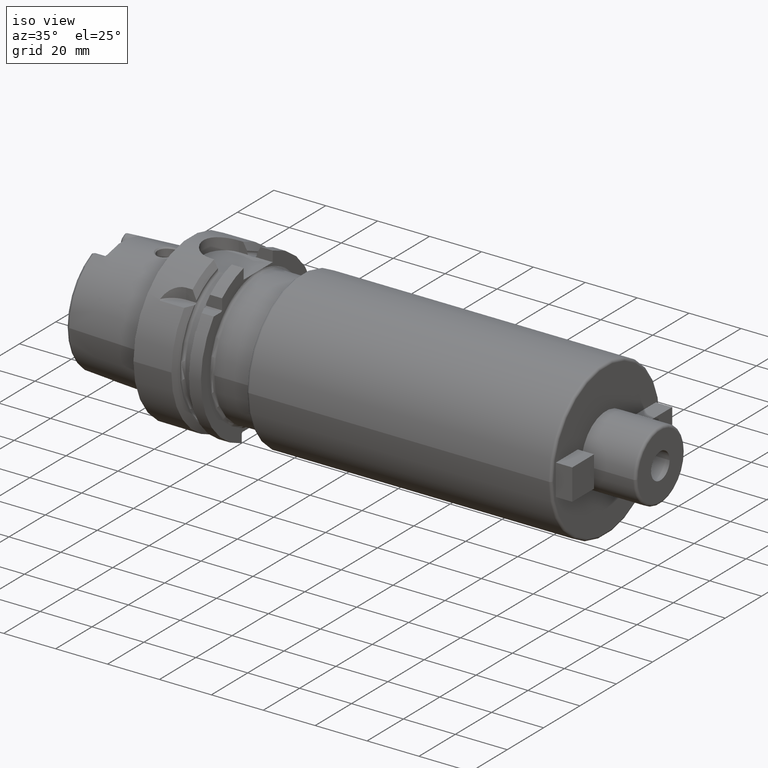
[diagram: clean part render]
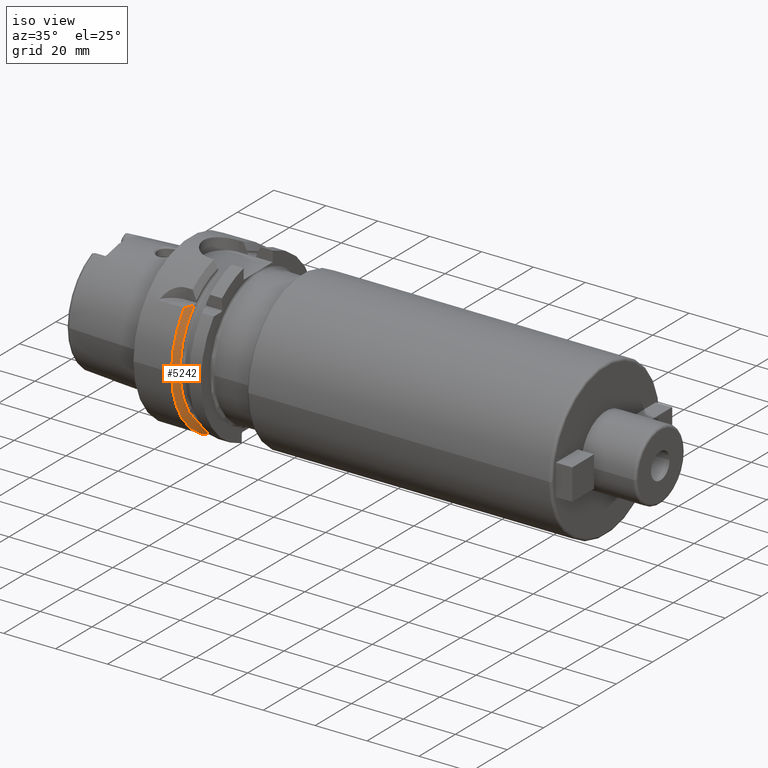
[diagram: same view with one face highlighted and labeled with its STEP entity id]
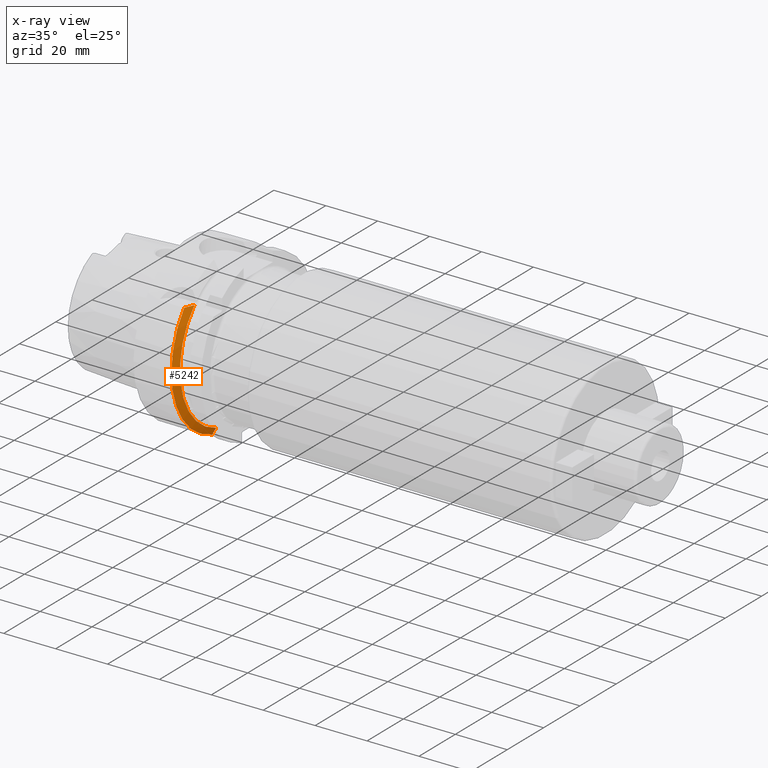
[diagram: x-ray of the same camera — body ghosted, the highlighted face saturated]
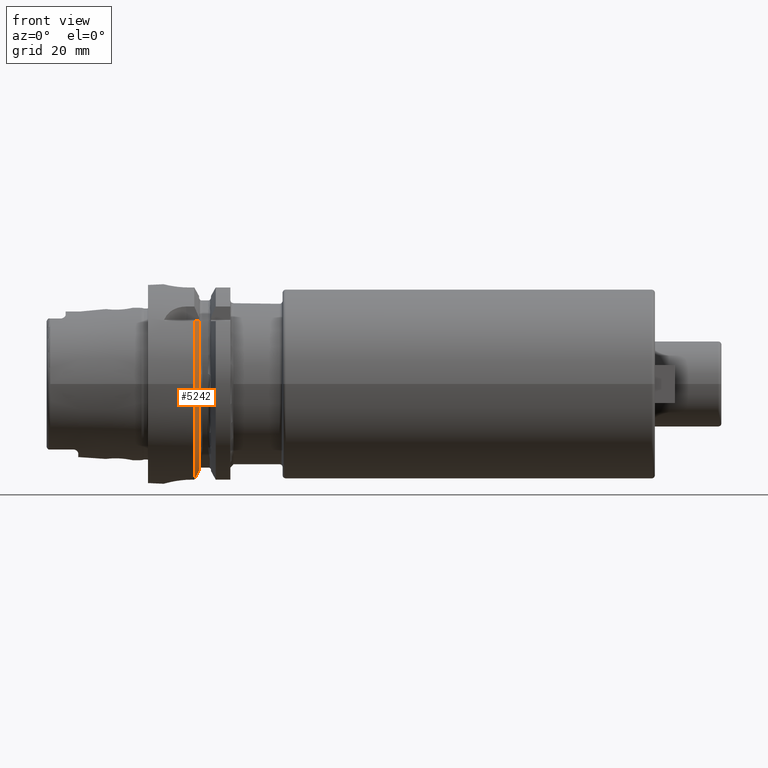
[diagram: same view with one face highlighted and labeled with its STEP entity id]
A machine part, iso view. The second image highlights one B-rep face of the part: STEP entity #5242.
The next image is the same camera in x-ray: the body ghosted, the highlighted face saturated — about 0% of this face is hidden behind the body in this view.
A second angle (front view) of the same face is appended — the face is thin or edge-on in the first view.
In plain terms, the highlighted conical surface has half-angle 60 deg.
Its self-contained STEP definition (entity closure, byte-faithful):
#1106=CARTESIAN_POINT('',(1.462250092524E1,0.E0,0.E0));
#1107=DIRECTION('',(1.E0,0.E0,0.E0));
#1108=DIRECTION('',(0.E0,-7.764663384879E-1,6.301587301587E-1));
#1109=AXIS2_PLACEMENT_3D('',#1106,#1107,#1108);
#1608=CARTESIAN_POINT('',(1.6125E1,-2.100115501712E1,1.985E1));
#1609=CARTESIAN_POINT('',(1.597384221917E1,-2.136140971936E1,1.985E1));
#1610=CARTESIAN_POINT('',(1.566115300621E1,-2.209786160622E1,1.985E1));
#1611=CARTESIAN_POINT('',(1.516255881786E1,-2.324577082409E1,1.985E1));
#1612=CARTESIAN_POINT('',(1.480632619355E1,-2.404863363206E1,1.985E1));
#1613=CARTESIAN_POINT('',(1.462250092524E1,-2.445868966237E1,1.985E1));
#1615=CARTESIAN_POINT('',(1.6125E1,0.E0,0.E0));
#1616=DIRECTION('',(1.E0,0.E0,0.E0));
#1617=DIRECTION('',(0.E0,-7.267440361428E-1,6.869083679290E-1));
#1618=AXIS2_PLACEMENT_3D('',#1615,#1616,#1617);
#1620=CARTESIAN_POINT('',(1.6125E1,-9.0175E0,-2.745461174016E1));
#1621=CARTESIAN_POINT('',(1.596600098125E1,-9.0175E0,-2.774448053791E1));
#1622=CARTESIAN_POINT('',(1.564270948849E1,-9.0175E0,-2.833297398512E1));
#1623=CARTESIAN_POINT('',(1.514210518984E1,-9.0175E0,-2.924158789478E1));
#1624=CARTESIAN_POINT('',(1.479749126019E1,-9.0175E0,-2.986536377611E1));
#1625=CARTESIAN_POINT('',(1.462250092524E1,-9.0175E0,-3.018169467989E1));
#1748=CARTESIAN_POINT('',(1.462250092524E1,0.E0,0.E0));
#1749=DIRECTION('',(1.E0,0.E0,0.E0));
#1750=DIRECTION('',(0.E0,-1.E0,0.E0));
#1751=AXIS2_PLACEMENT_3D('',#1748,#1749,#1750);
#3074=CARTESIAN_POINT('',(1.462250092524E1,-3.15E1,0.E0));
#3075=VERTEX_POINT('',#3074);
#3214=CARTESIAN_POINT('',(1.462250092524E1,-9.0175E0,-3.018169467989E1));
#3215=VERTEX_POINT('',#3214);
#3220=CARTESIAN_POINT('',(1.6125E1,-9.0175E0,-2.745461174016E1));
#3222=VERTEX_POINT('',#3220);
#3256=CARTESIAN_POINT('',(1.6125E1,-2.100115501712E1,1.985E1));
#3258=VERTEX_POINT('',#3256);
#3272=VERTEX_POINT('',#1613);
#5227=CARTESIAN_POINT('',(1.537375046262E1,0.E0,0.E0));
#5228=DIRECTION('',(-1.E0,0.E0,0.E0));
#5229=DIRECTION('',(0.E0,1.E0,0.E0));
#5230=AXIS2_PLACEMENT_3D('',#5227,#5228,#5229);
#5231=CONICAL_SURFACE('',#5230,3.019879763210E1,6.E1);
#5233=ORIENTED_EDGE('',*,*,#5232,.F.);
#5234=ORIENTED_EDGE('',*,*,#5148,.T.);
#5236=ORIENTED_EDGE('',*,*,#5235,.T.);
#5238=ORIENTED_EDGE('',*,*,#5237,.F.);
#5239=ORIENTED_EDGE('',*,*,#4663,.F.);
#5240=EDGE_LOOP('',(#5233,#5234,#5236,#5238,#5239));
#5241=FACE_OUTER_BOUND('',#5240,.F.);
#5242=ADVANCED_FACE('',(#5241),#5231,.T.);
#1110=CIRCLE('',#1109,3.15E1);
#1614=B_SPLINE_CURVE_WITH_KNOTS('',3,(#1608,#1609,#1610,#1611,#1612,#1613),
.UNSPECIFIED.,.F.,.F.,(4,1,1,4),(0.E0,3.333333333333E-1,6.666666666667E-1,1.E0),
.UNSPECIFIED.);
#1619=CIRCLE('',#1618,2.889759526419E1);
#1626=B_SPLINE_CURVE_WITH_KNOTS('',3,(#1620,#1621,#1622,#1623,#1624,#1625),
.UNSPECIFIED.,.F.,.F.,(4,1,1,4),(0.E0,3.333333333333E-1,6.666666666667E-1,1.E0),
.UNSPECIFIED.);
#1752=CIRCLE('',#1751,3.15E1);
#4663=EDGE_CURVE('',#3272,#3075,#1110,.T.);
#5148=EDGE_CURVE('',#3258,#3222,#1619,.T.);
#5232=EDGE_CURVE('',#3258,#3272,#1614,.T.);
#5235=EDGE_CURVE('',#3222,#3215,#1626,.T.);
#5237=EDGE_CURVE('',#3075,#3215,#1752,.T.);